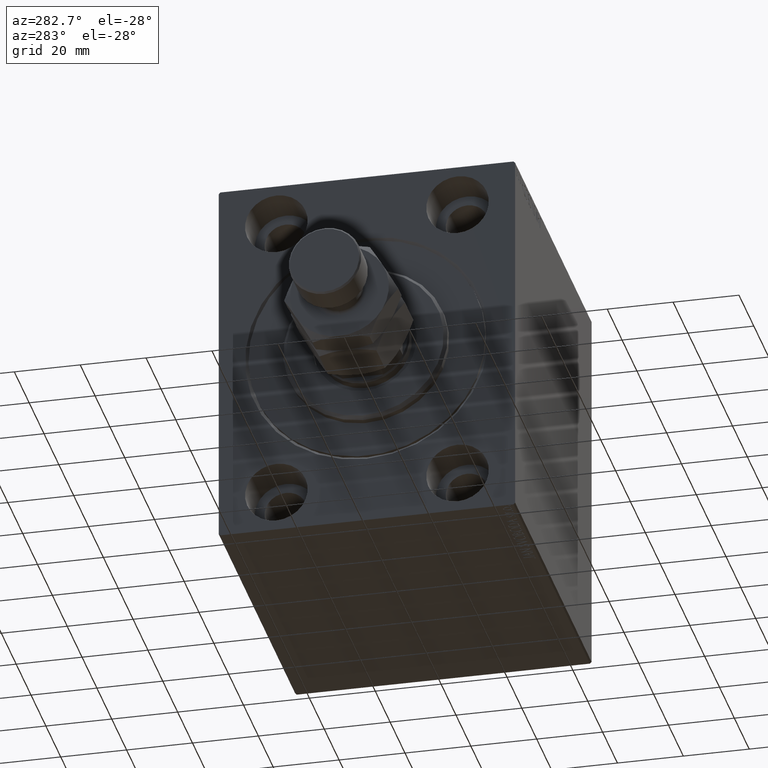
[diagram: clean part render]
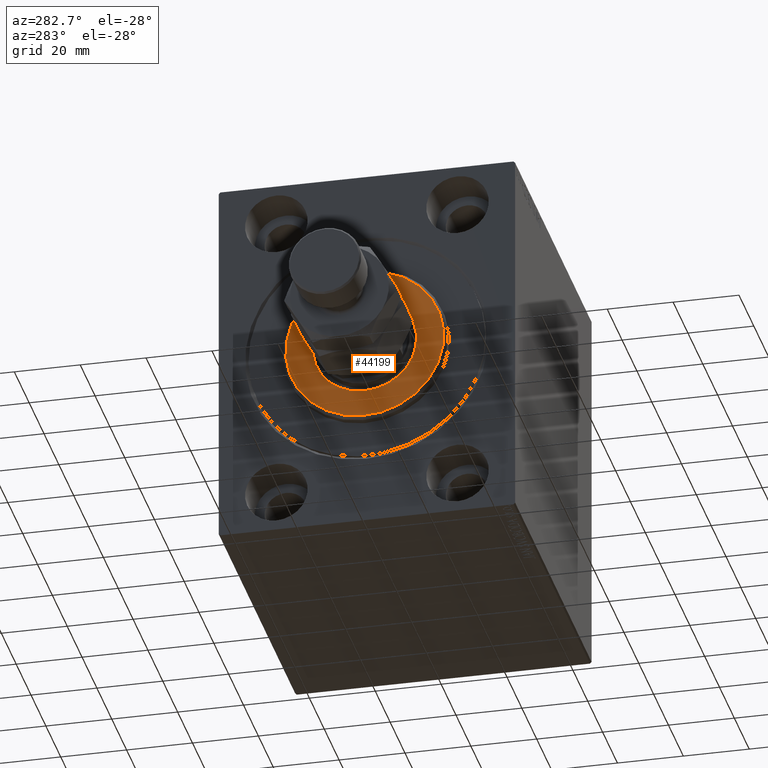
[diagram: same view with one face highlighted and labeled with its STEP entity id]
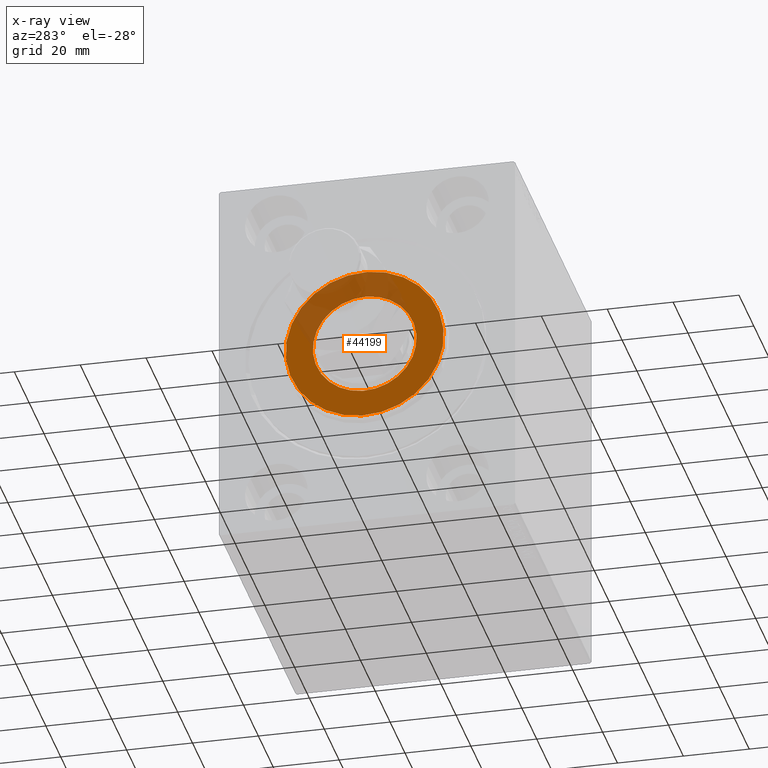
[diagram: x-ray of the same camera — body ghosted, the highlighted face saturated]
A machine part, auxiliary view. The second image highlights one B-rep face of the part: STEP entity #44199.
The next image is the same camera in x-ray: the body ghosted, the highlighted face saturated — about 29% of this face is hidden behind the body in this view.
In plain terms, the highlighted planar face has unit normal (-1, 0, 0).
Its self-contained STEP definition (entity closure, byte-faithful):
#1134 = CARTESIAN_POINT ( 'NONE',  ( 3.000000000000000000, 0.000000000000000000, 0.000000000000000000 ) ) ;
#4457 = AXIS2_PLACEMENT_3D ( 'NONE', #1134, #15405, #21363 ) ;
#5002 = DIRECTION ( 'NONE',  ( 0.000000000000000000, 0.000000000000000000, -1.000000000000000000 ) ) ;
#5526 = DIRECTION ( 'NONE',  ( 0.000000000000000000, 0.000000000000000000, -1.000000000000000000 ) ) ;
#5919 = CARTESIAN_POINT ( 'NONE',  ( 3.000000000000000000, 0.000000000000000000, 0.000000000000000000 ) ) ;
#7701 = VERTEX_POINT ( 'NONE', #13678 ) ;
#9552 = CARTESIAN_POINT ( 'NONE',  ( 3.000000000000000000, 0.000000000000000000, 0.000000000000000000 ) ) ;
#10705 = CIRCLE ( 'NONE', #13637, 24.00000000000003553 ) ;
#11097 = VERTEX_POINT ( 'NONE', #18014 ) ;
#11759 = CIRCLE ( 'NONE', #24211, 24.00000000000003553 ) ;
#12278 = ORIENTED_EDGE ( 'NONE', *, *, #32502, .T. ) ;
#12374 = AXIS2_PLACEMENT_3D ( 'NONE', #28207, #31448, #20635 ) ;
#13129 = EDGE_LOOP ( 'NONE', ( #13794, #12278 ) ) ;
#13637 = AXIS2_PLACEMENT_3D ( 'NONE', #5919, #26146, #5002 ) ;
#13678 = CARTESIAN_POINT ( 'NONE',  ( 3.000000000000000000, 1.928818708657080950E-15, -15.75000000000000000 ) ) ;
#13794 = ORIENTED_EDGE ( 'NONE', *, *, #18271, .T. ) ;
#14546 = VERTEX_POINT ( 'NONE', #34476 ) ;
#15405 = DIRECTION ( 'NONE',  ( -1.000000000000000000, 0.000000000000000000, -0.000000000000000000 ) ) ;
#15953 = EDGE_CURVE ( 'NONE', #14546, #27076, #11759, .T. ) ;
#18014 = CARTESIAN_POINT ( 'NONE',  ( 3.000000000000000000, 0.000000000000000000, 15.75000000000000000 ) ) ;
#18271 = EDGE_CURVE ( 'NONE', #11097, #7701, #44851, .T. ) ;
#20635 = DIRECTION ( 'NONE',  ( 0.000000000000000000, 0.000000000000000000, -1.000000000000000000 ) ) ;
#21363 = DIRECTION ( 'NONE',  ( 0.000000000000000000, 0.000000000000000000, -1.000000000000000000 ) ) ;
#22074 = FACE_BOUND ( 'NONE', #13129, .T. ) ;
#24211 = AXIS2_PLACEMENT_3D ( 'NONE', #9552, #30020, #40388 ) ;
#24311 = ORIENTED_EDGE ( 'NONE', *, *, #26275, .T. ) ;
#26146 = DIRECTION ( 'NONE',  ( 1.000000000000000000, -0.000000000000000000, 0.000000000000000000 ) ) ;
#26275 = EDGE_CURVE ( 'NONE', #27076, #14546, #10705, .T. ) ;
#27076 = VERTEX_POINT ( 'NONE', #31689 ) ;
#28207 = CARTESIAN_POINT ( 'NONE',  ( 3.000000000000000000, 0.000000000000000000, 0.000000000000000000 ) ) ;
#29893 = DIRECTION ( 'NONE',  ( 1.000000000000000000, -0.000000000000000000, 0.000000000000000000 ) ) ;
#30020 = DIRECTION ( 'NONE',  ( 1.000000000000000000, -0.000000000000000000, 0.000000000000000000 ) ) ;
#31415 = CIRCLE ( 'NONE', #12374, 15.75000000000000000 ) ;
#31448 = DIRECTION ( 'NONE',  ( -1.000000000000000000, 0.000000000000000000, -0.000000000000000000 ) ) ;
#31689 = CARTESIAN_POINT ( 'NONE',  ( 3.000000000000000000, 0.000000000000000000, 24.00000000000003553 ) ) ;
#32502 = EDGE_CURVE ( 'NONE', #7701, #11097, #31415, .T. ) ;
#32940 = ORIENTED_EDGE ( 'NONE', *, *, #15953, .T. ) ;
#33123 = FACE_OUTER_BOUND ( 'NONE', #41180, .T. ) ;
#34476 = CARTESIAN_POINT ( 'NONE',  ( 3.000000000000000000, 3.000384657911017441E-15, -24.00000000000003553 ) ) ;
#36579 = CARTESIAN_POINT ( 'NONE',  ( 3.000000000000000000, 0.000000000000000000, 0.000000000000000000 ) ) ;
#40388 = DIRECTION ( 'NONE',  ( 0.000000000000000000, 0.000000000000000000, -1.000000000000000000 ) ) ;
#41180 = EDGE_LOOP ( 'NONE', ( #24311, #32940 ) ) ;
#43942 = PLANE ( 'NONE',  #44186 ) ;
#44186 = AXIS2_PLACEMENT_3D ( 'NONE', #36579, #29893, #5526 ) ;
#44199 = ADVANCED_FACE ( 'NONE', ( #33123, #22074 ), #43942, .T. ) ;
#44851 = CIRCLE ( 'NONE', #4457, 15.75000000000000000 ) ;